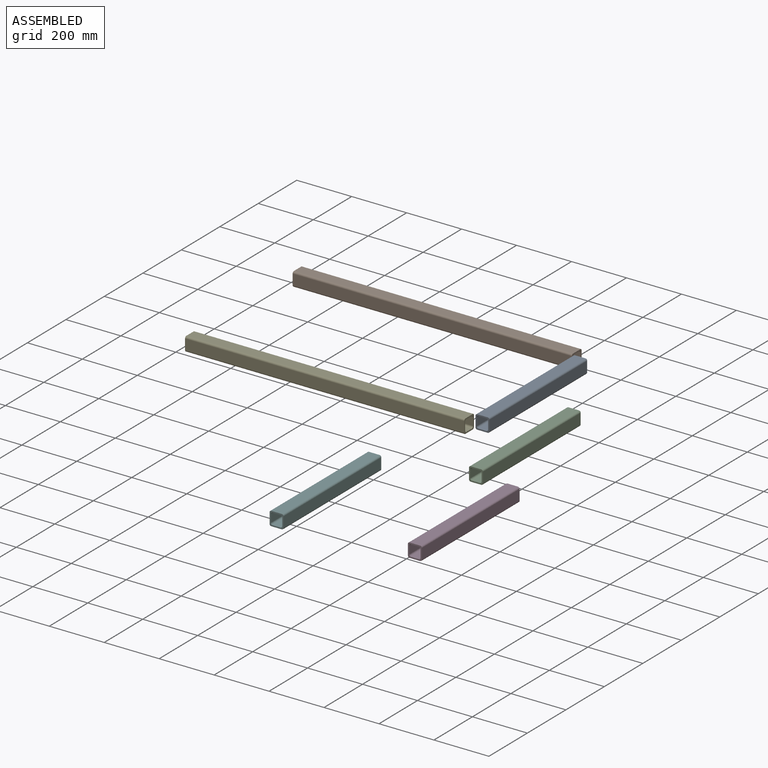
[diagram: assembled view]
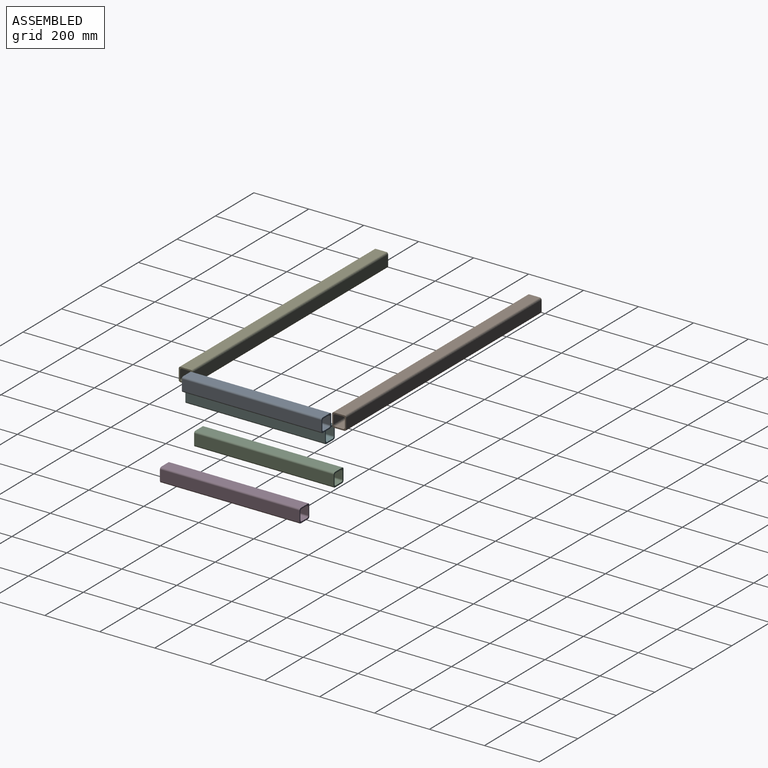
[diagram: assembled view, second angle]
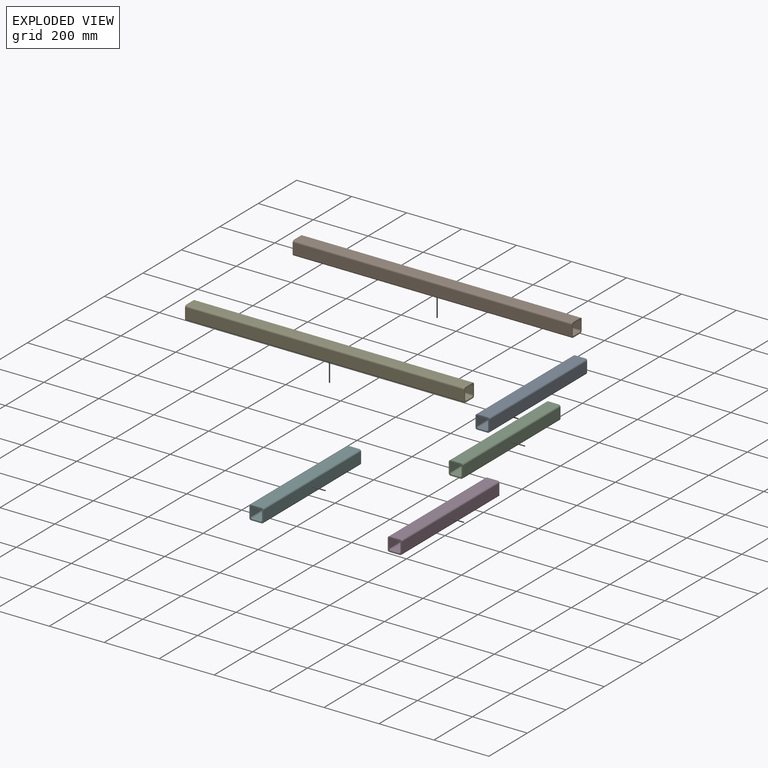
[diagram: exploded view]
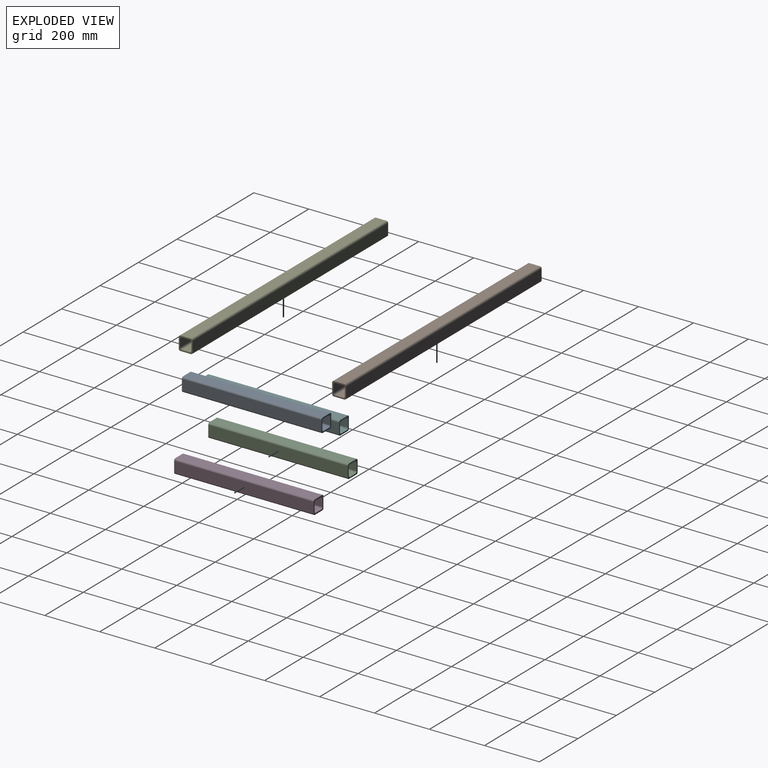
[diagram: exploded view, second angle]
ASSEMBLY  parts=6 mates=4
PART A: 18 faces, bbox 50.8x508x50.8 mm
  f0: cylinder r=6.35mm len=508mm, axis (0,1,0), area 5067.1mm2, adj f1,f15,f16,f17
  f1: plane 508x28.58mm, normal (0,0,1), area 14516.1mm2, adj f0,f2,f16,f17
  f2: cylinder r=6.35mm len=508mm, axis (0,1,0), area 5067.1mm2, adj f1,f3,f16,f17
  f3: plane 508x28.58mm, normal (1,0,0), area 14516.1mm2, adj f2,f4,f16,f17
  f4: cylinder r=6.35mm len=508mm, axis (0,1,0), area 5067.1mm2, adj f3,f5,f16,f17
  f5: plane 508x28.58mm, normal (0,0,-1), area 14516.1mm2, adj f4,f6,f16,f17
  f6: cylinder r=6.35mm len=508mm, axis (0,1,0), area 5067.1mm2, adj f5,f15,f16,f17
  f7: cylinder r=6.35mm len=508mm, axis (0,1,0), area 5067.1mm2, adj f8,f14,f16,f17
  f8: plane 508x38.1mm, normal (0,0,1), area 19354.8mm2, adj f7,f9,f16,f17
  f9: cylinder r=6.35mm len=508mm, axis (0,1,0), area 5067.1mm2, adj f8,f10,f16,f17
  f10: plane 508x38.1mm, normal (-1,0,0), area 19354.8mm2, adj f9,f11,f16,f17
  f11: cylinder r=6.35mm len=508mm, axis (0,1,0), area 5067.1mm2, adj f10,f12,f16,f17
  f12: plane 508x38.1mm, normal (0,0,-1), area 19354.8mm2, adj f11,f13,f16,f17
  f13: cylinder r=6.35mm len=508mm, axis (0,1,0), area 5067.1mm2, adj f12,f14,f16,f17
  f14: plane 508x38.1mm, normal (1,0,0), area 19354.8mm2, adj f7,f13,f16,f17
  f15: plane 508x28.58mm, normal (-1,0,0), area 14516.1mm2, adj f0,f6,f16,f17
  f16: plane 50.8x50.8mm, normal (0,-1,0), area 877mm2, adj f0,f1,f2,f3,f4,f5,f6,f7
  f17: plane 50.8x50.8mm, normal (0,1,0), area 877mm2, adj f0,f1,f2,f3,f4,f5,f6,f7
PART B: 18 faces, bbox 1016x50.8x50.8 mm
  f0: cylinder r=6.35mm len=1016mm, axis (-1,0,0), area 10134.1mm2, adj f1,f15,f16,f17
  f1: plane 1016x28.58mm, normal (0,0,1), area 29032.2mm2, adj f0,f2,f16,f17
  f2: cylinder r=6.35mm len=1016mm, axis (-1,0,0), area 10134.1mm2, adj f1,f3,f16,f17
  f3: plane 1016x28.58mm, normal (0,1,0), area 29032.2mm2, adj f2,f4,f16,f17
  f4: cylinder r=6.35mm len=1016mm, axis (-1,0,0), area 10134.1mm2, adj f3,f5,f16,f17
  f5: plane 1016x28.58mm, normal (0,0,-1), area 29032.2mm2, adj f4,f6,f16,f17
  f6: cylinder r=6.35mm len=1016mm, axis (-1,0,0), area 10134.1mm2, adj f5,f15,f16,f17
  f7: cylinder r=6.35mm len=1016mm, axis (-1,0,0), area 10134.1mm2, adj f8,f14,f16,f17
  f8: plane 1016x38.1mm, normal (0,0,1), area 38709.6mm2, adj f7,f9,f16,f17
  f9: cylinder r=6.35mm len=1016mm, axis (-1,0,0), area 10134.1mm2, adj f8,f10,f16,f17
  f10: plane 1016x38.1mm, normal (0,-1,0), area 38709.6mm2, adj f9,f11,f16,f17
  f11: cylinder r=6.35mm len=1016mm, axis (-1,0,0), area 10134.1mm2, adj f10,f12,f16,f17
  f12: plane 1016x38.1mm, normal (0,0,-1), area 38709.6mm2, adj f11,f13,f16,f17
  f13: cylinder r=6.35mm len=1016mm, axis (-1,0,0), area 10134.1mm2, adj f12,f14,f16,f17
  f14: plane 1016x38.1mm, normal (0,1,0), area 38709.6mm2, adj f7,f13,f16,f17
  f15: plane 1016x28.58mm, normal (0,-1,0), area 29032.2mm2, adj f0,f6,f16,f17
  f16: plane 50.8x50.8mm, normal (1,0,0), area 877mm2, adj f0,f1,f2,f3,f4,f5,f6,f7
  f17: plane 50.8x50.8mm, normal (-1,0,0), area 877mm2, adj f0,f1,f2,f3,f4,f5,f6,f7
PART C: same geometry as A
PART D: same geometry as A
PART E: same geometry as B
PART F: same geometry as A
PLACE A t=(203.2,248.85,59.09)mm
PLACE B t=(-868.62,249.26,43.4)mm
PLACE C t=(166.42,267.66,-129.07)mm
PLACE D t=(75.67,79.81,-332.25)mm
PLACE E t=(-869.05,-309.54,43.4)mm
PLACE F t=(-305.72,-94.57,-263.53)mm
MATE planar B.f8 <-> A.f8  axis (0,0,1) through (-360.62,274.25,111.92)mm
MATE planar E.f8 <-> A.f8  axis (0,0,1) through (-361.05,-284.55,111.92)mm
MATE planar B.f10 <-> A.f17  axis (0,-1,0) through (-360.62,248.85,86.52)mm
MATE planar E.f14 <-> A.f16  axis (0,1,0) through (-361.05,-259.15,86.52)mm
